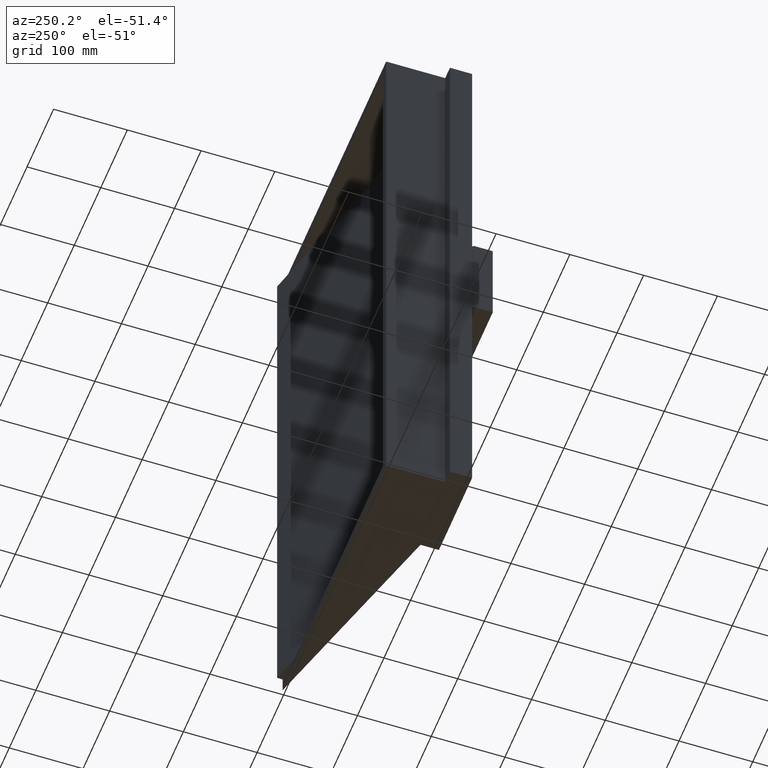
[diagram: clean part render]
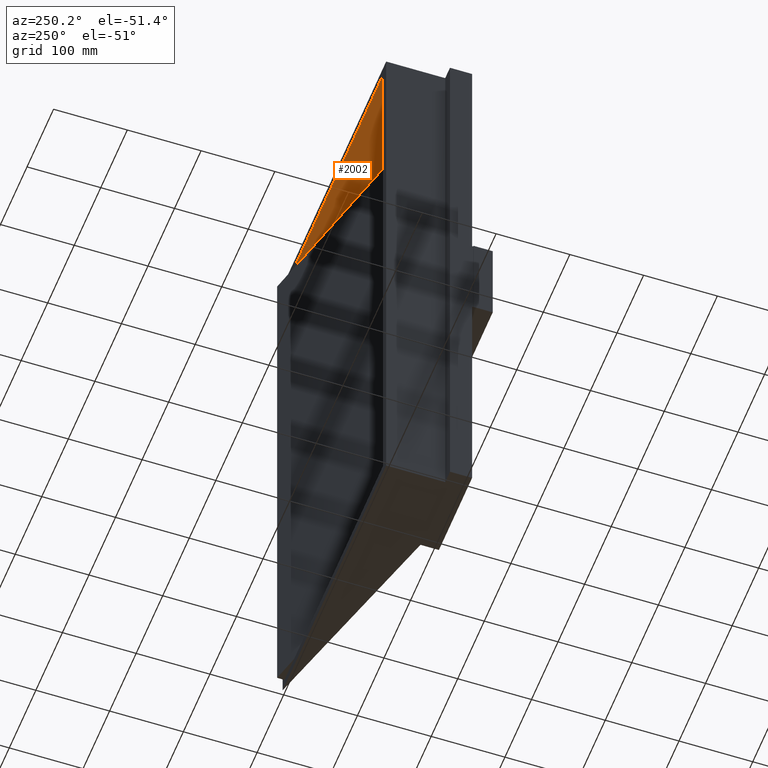
[diagram: same view with one face highlighted and labeled with its STEP entity id]
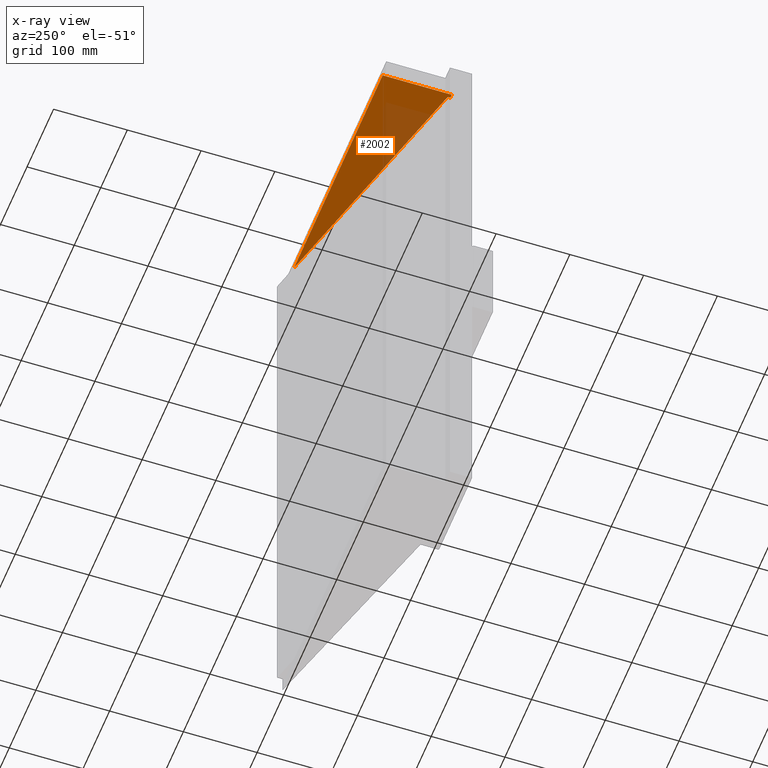
[diagram: x-ray of the same camera — body ghosted, the highlighted face saturated]
A machine part, auxiliary view. The second image highlights one B-rep face of the part: STEP entity #2002.
The next image is the same camera in x-ray: the body ghosted, the highlighted face saturated — about 22% of this face is hidden behind the body in this view.
In plain terms, the highlighted planar face has unit normal (0, 0, 1).
Its self-contained STEP definition (entity closure, byte-faithful):
#136 = AXIS2_PLACEMENT_3D ( 'NONE', #1056, #1057, #2439 ) ;
#302 = DIRECTION ( 'NONE',  ( -1.000000000000000000, 0.0000000000000000000, 0.0000000000000000000 ) ) ;
#435 = CARTESIAN_POINT ( 'NONE',  ( -86.11638246079655800, 0.0000000000000000000, 399.9999999999999400 ) ) ;
#440 = CARTESIAN_POINT ( 'NONE',  ( -68.11638246079655800, -93.50000000000000000, 399.9999999999999400 ) ) ;
#529 = ORIENTED_EDGE ( 'NONE', *, *, #1531, .T. ) ;
#566 = DIRECTION ( 'NONE',  ( 0.0000000000000000000, 1.000000000000000000, 0.0000000000000000000 ) ) ;
#674 = CARTESIAN_POINT ( 'NONE',  ( -73.11638246079654400, 0.0000000000000000000, 399.9999999999999400 ) ) ;
#697 = VECTOR ( 'NONE', #2507, 1000.000000000000000 ) ;
#760 = CARTESIAN_POINT ( 'NONE',  ( 296.8836175392034400, 10.00000000000000000, 399.9999999999999400 ) ) ;
#813 = CARTESIAN_POINT ( 'NONE',  ( -68.11638246079654400, -90.00000000000000000, 399.9999999999999400 ) ) ;
#861 = LINE ( 'NONE', #2769, #697 ) ;
#864 = EDGE_CURVE ( 'NONE', #2053, #1391, #1595, .T. ) ;
#932 = CARTESIAN_POINT ( 'NONE',  ( -68.11638246079643000, -90.00000000000000000, 399.9999999999999400 ) ) ;
#992 = VECTOR ( 'NONE', #302, 1000.000000000000000 ) ;
#1029 = CARTESIAN_POINT ( 'NONE',  ( -73.11638246079655800, -93.50000000000000000, 399.9999999999999400 ) ) ;
#1056 = CARTESIAN_POINT ( 'NONE',  ( -73.11638246079654400, 9.999999999999955600, 399.9999999999999400 ) ) ;
#1057 = DIRECTION ( 'NONE',  ( 0.0000000000000000000, 0.0000000000000000000, 1.000000000000000000 ) ) ;
#1068 = PLANE ( 'NONE',  #136 ) ;
#1129 = CARTESIAN_POINT ( 'NONE',  ( 260.3836175392035000, 0.0000000000000000000, 399.9999999999998900 ) ) ;
#1191 = LINE ( 'NONE', #813, #2932 ) ;
#1318 = EDGE_CURVE ( 'NONE', #2204, #1601, #861, .T. ) ;
#1334 = EDGE_LOOP ( 'NONE', ( #2152, #2420, #529, #1448, #2492 ) ) ;
#1383 = LINE ( 'NONE', #2925, #2121 ) ;
#1391 = VERTEX_POINT ( 'NONE', #1129 ) ;
#1448 = ORIENTED_EDGE ( 'NONE', *, *, #1318, .F. ) ;
#1531 = EDGE_CURVE ( 'NONE', #2607, #1601, #1383, .T. ) ;
#1595 = LINE ( 'NONE', #760, #1636 ) ;
#1601 = VERTEX_POINT ( 'NONE', #1029 ) ;
#1636 = VECTOR ( 'NONE', #2560, 1000.000000000000100 ) ;
#2002 = ADVANCED_FACE ( 'NONE', ( #2384 ), #1068, .F. ) ;
#2053 = VERTEX_POINT ( 'NONE', #932 ) ;
#2098 = LINE ( 'NONE', #435, #992 ) ;
#2112 = EDGE_CURVE ( 'NONE', #2607, #2053, #1191, .T. ) ;
#2121 = VECTOR ( 'NONE', #2473, 1000.000000000000000 ) ;
#2152 = ORIENTED_EDGE ( 'NONE', *, *, #864, .F. ) ;
#2204 = VERTEX_POINT ( 'NONE', #674 ) ;
#2351 = EDGE_CURVE ( 'NONE', #1391, #2204, #2098, .T. ) ;
#2384 = FACE_OUTER_BOUND ( 'NONE', #1334, .T. ) ;
#2420 = ORIENTED_EDGE ( 'NONE', *, *, #2112, .F. ) ;
#2439 = DIRECTION ( 'NONE',  ( 1.000000000000000000, 0.0000000000000000000, -0.0000000000000000000 ) ) ;
#2473 = DIRECTION ( 'NONE',  ( -1.000000000000000000, -0.0000000000000000000, -0.0000000000000000000 ) ) ;
#2492 = ORIENTED_EDGE ( 'NONE', *, *, #2351, .F. ) ;
#2507 = DIRECTION ( 'NONE',  ( -1.387778780781446400E-016, -1.000000000000000000, 0.0000000000000000000 ) ) ;
#2560 = DIRECTION ( 'NONE',  ( 0.9644582868368908300, 0.2642351470786004100, -0.0000000000000000000 ) ) ;
#2607 = VERTEX_POINT ( 'NONE', #440 ) ;
#2769 = CARTESIAN_POINT ( 'NONE',  ( -73.11638246079654400, 9.999999999999955600, 399.9999999999999400 ) ) ;
#2925 = CARTESIAN_POINT ( 'NONE',  ( 305.4194257289940400, -93.50000000000000000, 399.9999999999999400 ) ) ;
#2932 = VECTOR ( 'NONE', #566, 1000.000000000000000 ) ;